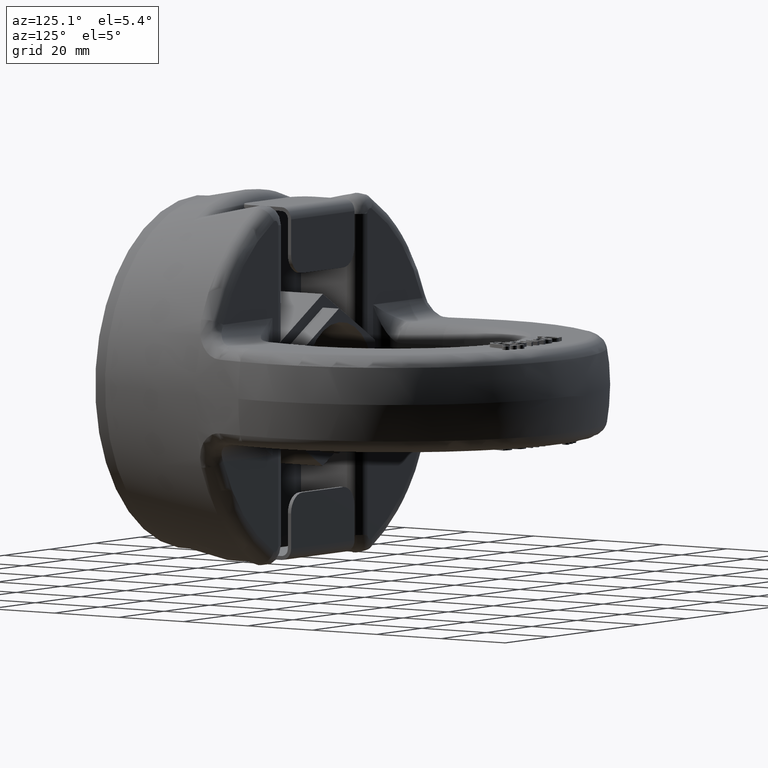
[diagram: clean part render]
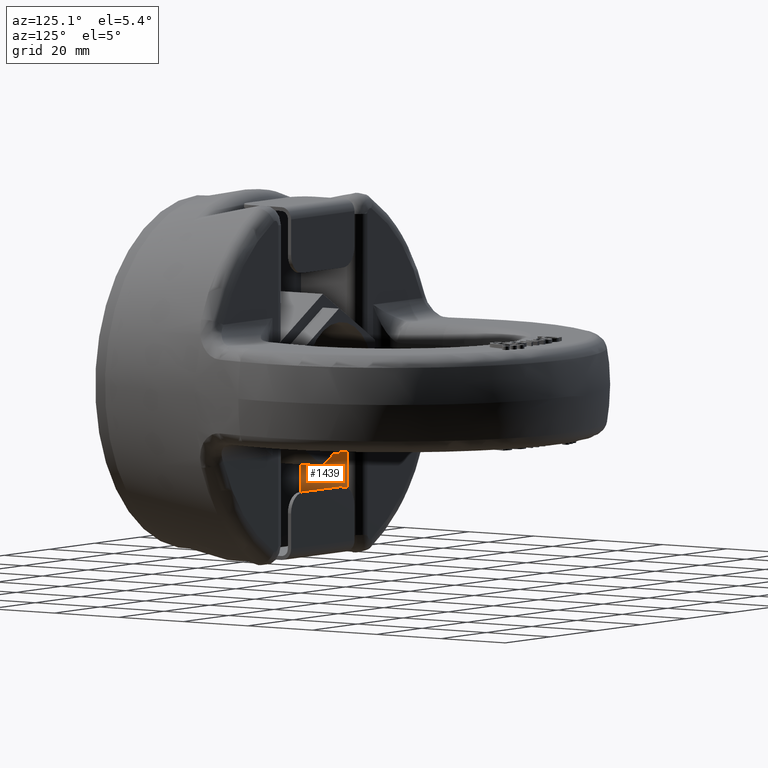
[diagram: same view with one face highlighted and labeled with its STEP entity id]
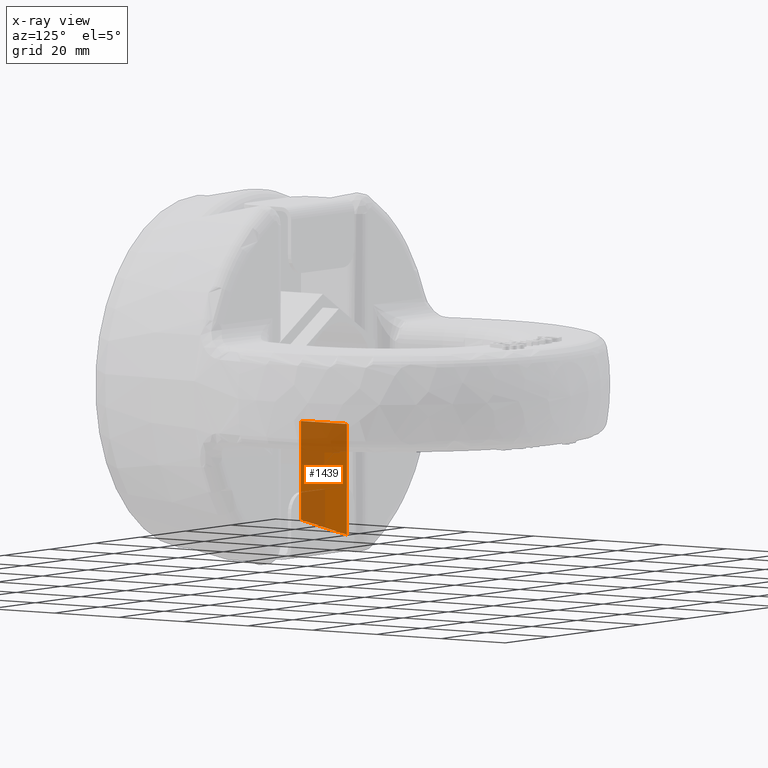
[diagram: x-ray of the same camera — body ghosted, the highlighted face saturated]
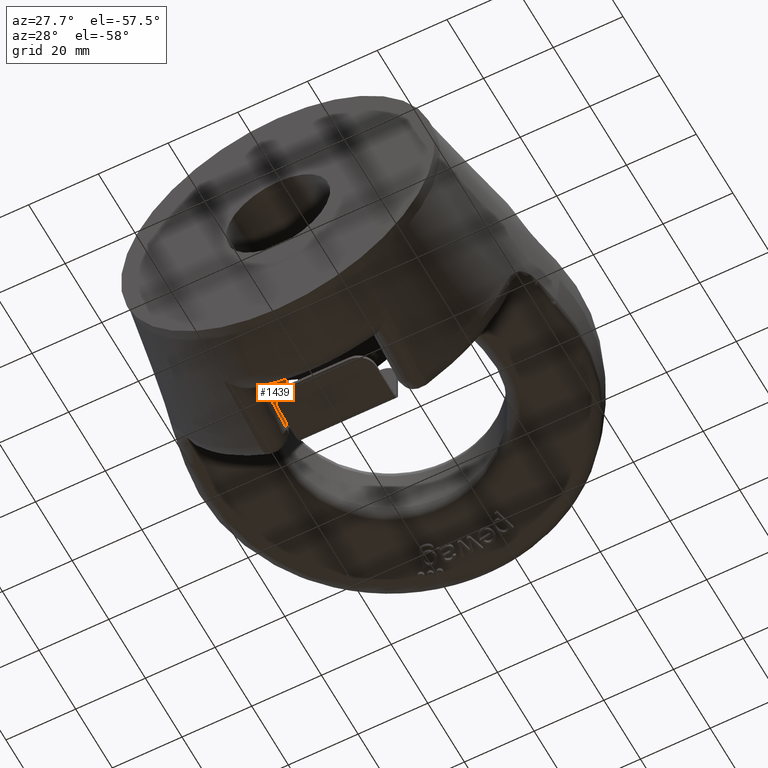
[diagram: same view with one face highlighted and labeled with its STEP entity id]
A machine part, auxiliary view. The second image highlights one B-rep face of the part: STEP entity #1439.
The next image is the same camera in x-ray: the body ghosted, the highlighted face saturated — about 51% of this face is hidden behind the body in this view.
A second angle (auxiliary view) of the same face is appended — the face is thin or edge-on in the first view.
In plain terms, the highlighted planar face has unit normal (1, 0, 0).
Its self-contained STEP definition (entity closure, byte-faithful):
#1206=FACE_OUTER_BOUND('',#1973,.T.);
#1439=ADVANCED_FACE('',(#1206),#1618,.T.);
#1618=PLANE('',#5242);
#1973=EDGE_LOOP('',(#3327,#3328,#3329,#3330));
#2264=LINE('',#8350,#2562);
#2267=LINE('',#8364,#2565);
#2268=LINE('',#8366,#2566);
#2562=VECTOR('',#5845,1.);
#2565=VECTOR('',#5850,1.);
#2566=VECTOR('',#5851,1.);
#3327=ORIENTED_EDGE('',*,*,#4617,.T.);
#3328=ORIENTED_EDGE('',*,*,#4618,.T.);
#3329=ORIENTED_EDGE('',*,*,#4619,.F.);
#3330=ORIENTED_EDGE('',*,*,#4614,.T.);
#4134=VERTEX_POINT('',#8349);
#4135=VERTEX_POINT('',#8351);
#4137=VERTEX_POINT('',#8363);
#4138=VERTEX_POINT('',#8365);
#4614=EDGE_CURVE('',#4135,#4134,#2264,.T.);
#4617=EDGE_CURVE('',#4134,#4137,#5003,.T.);
#4618=EDGE_CURVE('',#4137,#4138,#2267,.T.);
#4619=EDGE_CURVE('',#4135,#4138,#2268,.T.);
#5003=B_SPLINE_CURVE_WITH_KNOTS('',3,(#8356,#8357,#8358,#8359,#8360,#8361,
#8362),.UNSPECIFIED.,.F.,.F.,(4,3,4),(0.,0.641062584480835,1.),
 .UNSPECIFIED.);
#5242=AXIS2_PLACEMENT_3D('',#8367,#5852,#5853);
#5845=DIRECTION('',(2.34291072916505E-15,0.,-1.));
#5850=DIRECTION('',(-2.34291072916505E-15,0.,1.));
#5851=DIRECTION('',(-1.92747052886312E-16,1.,1.11282562869419E-16));
#5852=DIRECTION('',(1.,1.92747052886312E-16,2.34291072916505E-15));
#5853=DIRECTION('',(1.94289029309402E-16,-1.,0.));
#8349=CARTESIAN_POINT('',(-15.9999999999999,21.,-37.886937560647));
#8350=CARTESIAN_POINT('',(-15.9999999999999,21.,-60.5000000000001));
#8351=CARTESIAN_POINT('',(-16.,21.,-12.7017059221718));
#8356=CARTESIAN_POINT('',(-15.9999999999999,21.,-37.886937560647));
#8357=CARTESIAN_POINT('',(-15.9999999999999,24.0438484352039,-38.5455396137496));
#8358=CARTESIAN_POINT('',(-15.9999999999999,27.0885307872894,-39.2002961935515));
#8359=CARTESIAN_POINT('',(-15.9999999999999,30.1339188735408,-39.8517417898696));
#8360=CARTESIAN_POINT('',(-15.9999999999999,31.8390628172032,-40.2164928435044));
#8361=CARTESIAN_POINT('',(-15.9999999999999,33.5444294868033,-40.5802040115892));
#8362=CARTESIAN_POINT('',(-15.9999999999999,35.25,-40.9429551993896));
#8363=CARTESIAN_POINT('',(-15.9999999999999,35.25,-40.9429551993896));
#8364=CARTESIAN_POINT('',(-15.9999999999999,35.25,-60.5000000000001));
#8365=CARTESIAN_POINT('',(-16.,35.25,-12.7017059221718));
#8366=CARTESIAN_POINT('',(-16.,21.,-12.7017059221718));
#8367=CARTESIAN_POINT('',(-15.9999999999999,21.,-60.5000000000001));